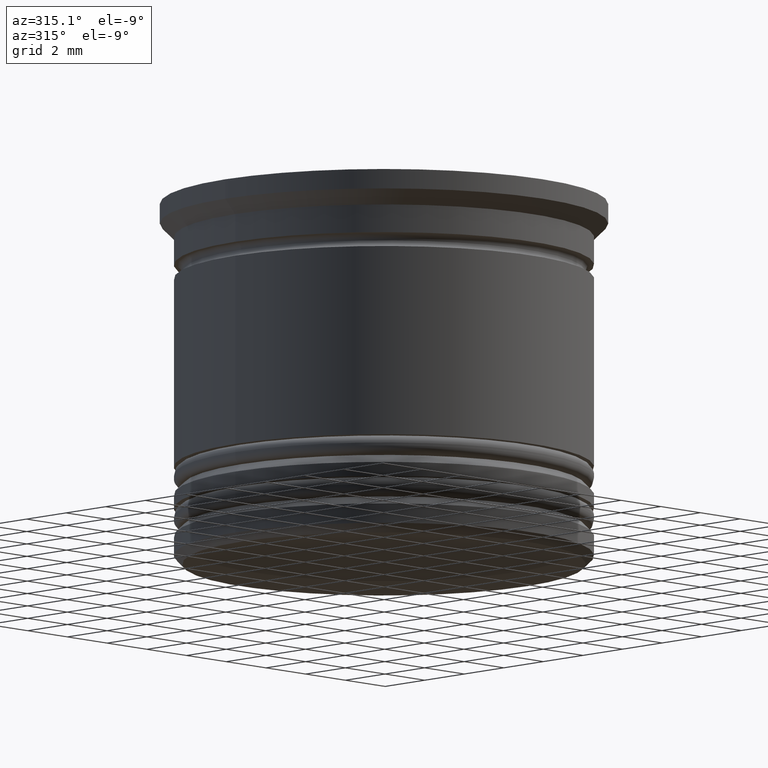
[diagram: clean part render]
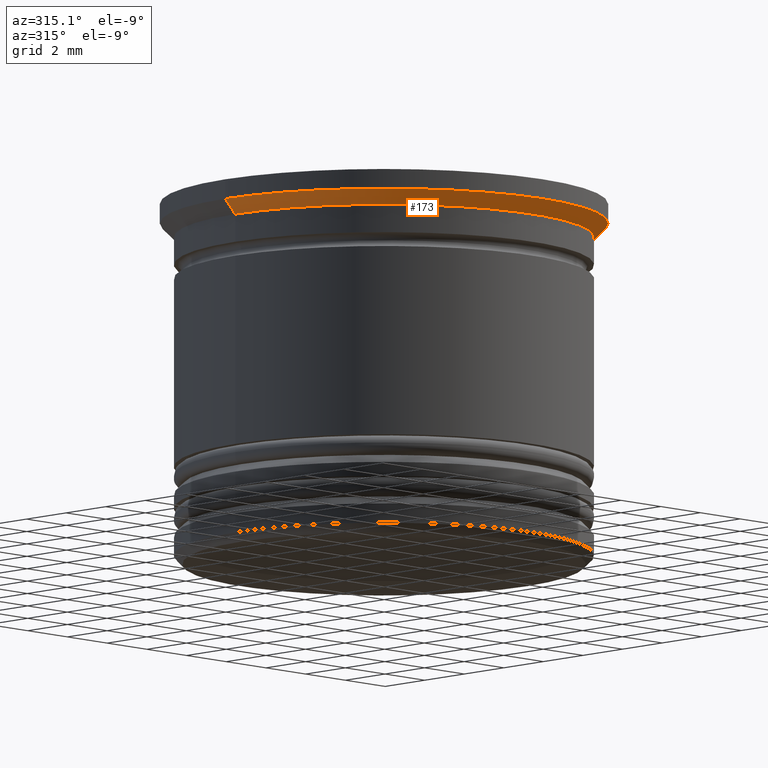
[diagram: same view with one face highlighted and labeled with its STEP entity id]
A machine part, auxiliary view. The second image highlights one B-rep face of the part: STEP entity #173.
In plain terms, the highlighted conical surface has half-angle 45 deg.
Its self-contained STEP definition (entity closure, byte-faithful):
#32 = DIRECTION ( 'NONE',  ( -0.7071067811865500152, 8.659560562354963673E-17, 0.7071067811865450192 ) ) ;
#38 = CARTESIAN_POINT ( 'NONE',  ( -8.000000000000000000, 9.797174393178825657E-16, -0.7000000000000005107 ) ) ;
#75 = DIRECTION ( 'NONE',  ( -0.000000000000000000, -0.000000000000000000, 1.000000000000000000 ) ) ;
#95 = CARTESIAN_POINT ( 'NONE',  ( 0.000000000000000000, 0.000000000000000000, -0.7000000000000005107 ) ) ;
#154 = EDGE_CURVE ( 'NONE', #1271, #907, #665, .T. ) ;
#173 = ADVANCED_FACE ( 'NONE', ( #1426 ), #1885, .T. ) ;
#206 = CARTESIAN_POINT ( 'NONE',  ( -8.000000000000000000, 9.797174393178825657E-16, -0.7000000000000005107 ) ) ;
#233 = DIRECTION ( 'NONE',  ( 0.7071067811865500152, 0.000000000000000000, 0.7071067811865450192 ) ) ;
#272 = DIRECTION ( 'NONE',  ( 1.000000000000000000, 0.000000000000000000, 0.000000000000000000 ) ) ;
#402 = ORIENTED_EDGE ( 'NONE', *, *, #154, .F. ) ;
#494 = CARTESIAN_POINT ( 'NONE',  ( 8.000000000000000000, 0.000000000000000000, -0.7000000000000005107 ) ) ;
#498 = CARTESIAN_POINT ( 'NONE',  ( 8.000000000000000000, 0.000000000000000000, -0.7000000000000005107 ) ) ;
#525 = CARTESIAN_POINT ( 'NONE',  ( -7.499999999999998224, 9.184850993605145972E-16, -1.199999999999999289 ) ) ;
#635 = EDGE_CURVE ( 'NONE', #1242, #907, #998, .T. ) ;
#665 = CIRCLE ( 'NONE', #925, 8.000000000000000000 ) ;
#671 = CARTESIAN_POINT ( 'NONE',  ( 7.499999999999998224, 0.000000000000000000, -1.199999999999999289 ) ) ;
#907 = VERTEX_POINT ( 'NONE', #494 ) ;
#925 = AXIS2_PLACEMENT_3D ( 'NONE', #1714, #1419, #1745 ) ;
#998 = LINE ( 'NONE', #498, #1217 ) ;
#1019 = DIRECTION ( 'NONE',  ( 1.000000000000000000, 0.000000000000000000, 0.000000000000000000 ) ) ;
#1079 = EDGE_CURVE ( 'NONE', #1350, #1271, #1757, .T. ) ;
#1137 = DIRECTION ( 'NONE',  ( -0.000000000000000000, -0.000000000000000000, 1.000000000000000000 ) ) ;
#1147 = VECTOR ( 'NONE', #32, 1000.000000000000000 ) ;
#1217 = VECTOR ( 'NONE', #233, 1000.000000000000000 ) ;
#1242 = VERTEX_POINT ( 'NONE', #671 ) ;
#1271 = VERTEX_POINT ( 'NONE', #38 ) ;
#1350 = VERTEX_POINT ( 'NONE', #525 ) ;
#1357 = CARTESIAN_POINT ( 'NONE',  ( 0.000000000000000000, 0.000000000000000000, -1.199999999999999289 ) ) ;
#1419 = DIRECTION ( 'NONE',  ( -0.000000000000000000, -0.000000000000000000, 1.000000000000000000 ) ) ;
#1426 = FACE_OUTER_BOUND ( 'NONE', #1522, .T. ) ;
#1449 = ORIENTED_EDGE ( 'NONE', *, *, #635, .T. ) ;
#1484 = AXIS2_PLACEMENT_3D ( 'NONE', #1357, #75, #272 ) ;
#1522 = EDGE_LOOP ( 'NONE', ( #1543, #1828, #1449, #402 ) ) ;
#1543 = ORIENTED_EDGE ( 'NONE', *, *, #1079, .F. ) ;
#1634 = AXIS2_PLACEMENT_3D ( 'NONE', #95, #1137, #1019 ) ;
#1714 = CARTESIAN_POINT ( 'NONE',  ( 0.000000000000000000, 0.000000000000000000, -0.7000000000000005107 ) ) ;
#1742 = CIRCLE ( 'NONE', #1484, 7.499999999999998224 ) ;
#1745 = DIRECTION ( 'NONE',  ( -1.000000000000000000, 0.000000000000000000, 0.000000000000000000 ) ) ;
#1757 = LINE ( 'NONE', #206, #1147 ) ;
#1790 = EDGE_CURVE ( 'NONE', #1350, #1242, #1742, .T. ) ;
#1828 = ORIENTED_EDGE ( 'NONE', *, *, #1790, .T. ) ;
#1885 = CONICAL_SURFACE ( 'NONE', #1634, 8.000000000000000000, 0.7853981633974518317 ) ;